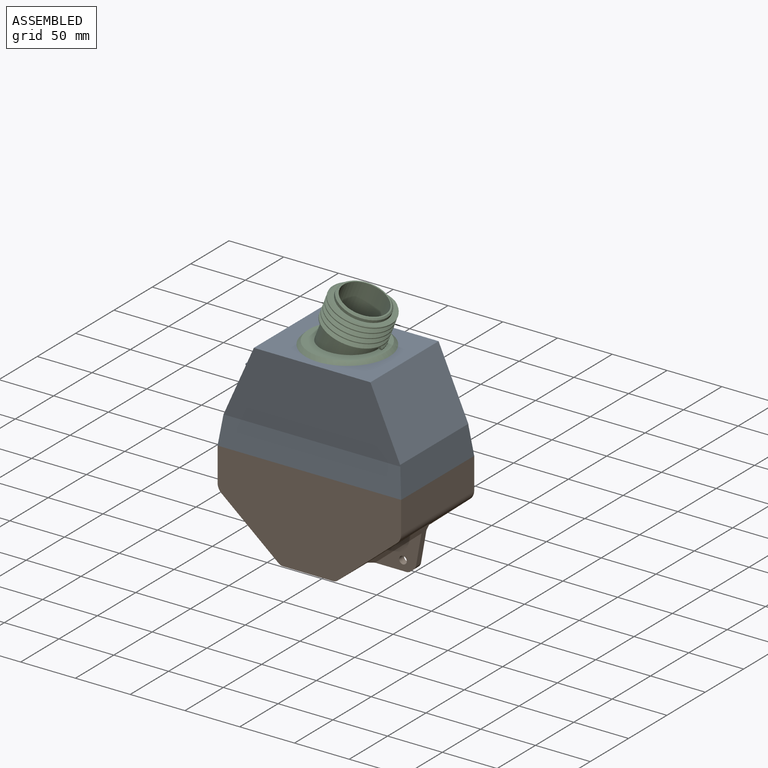
[diagram: assembled view]
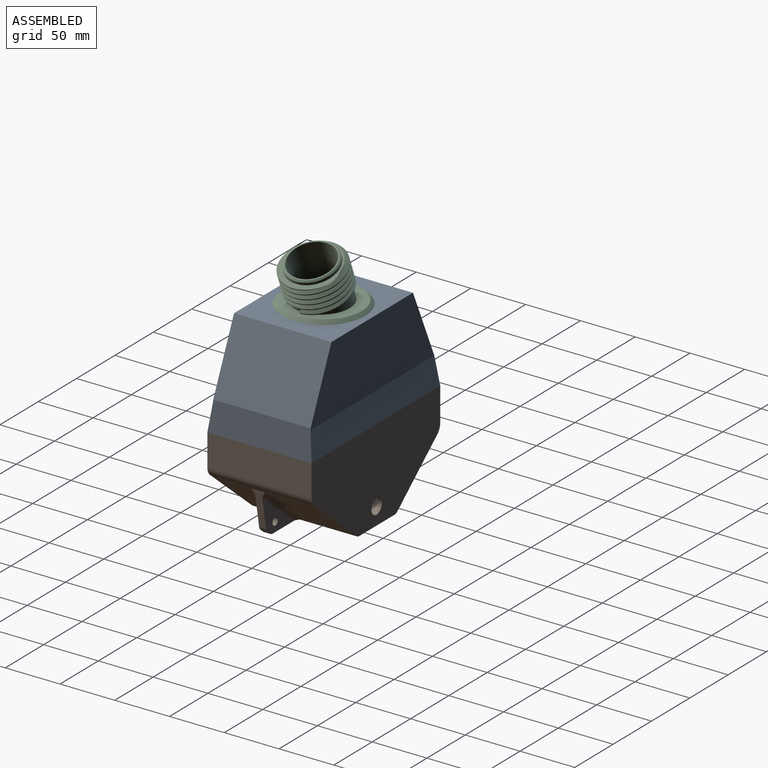
[diagram: assembled view, second angle]
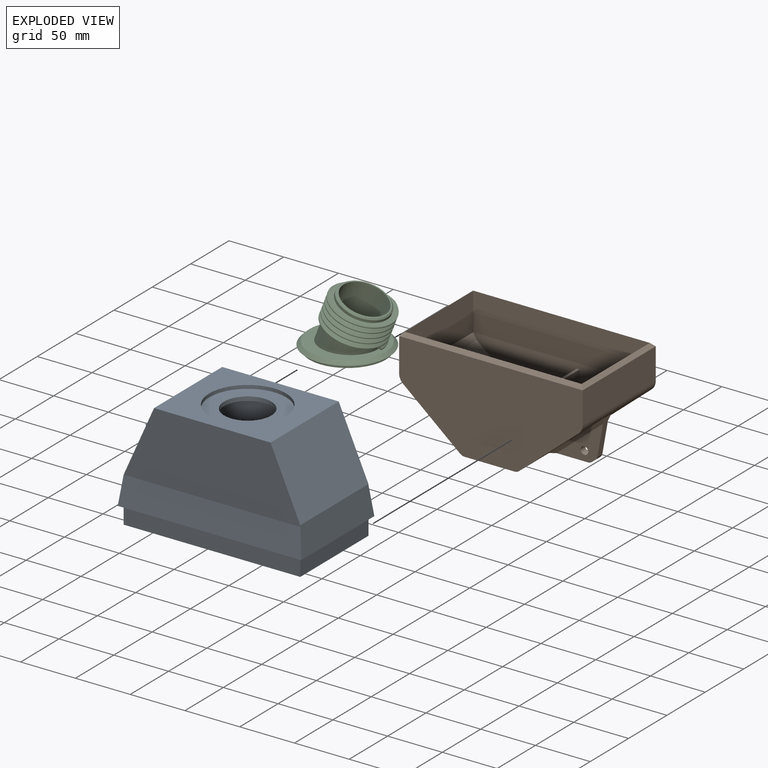
[diagram: exploded view]
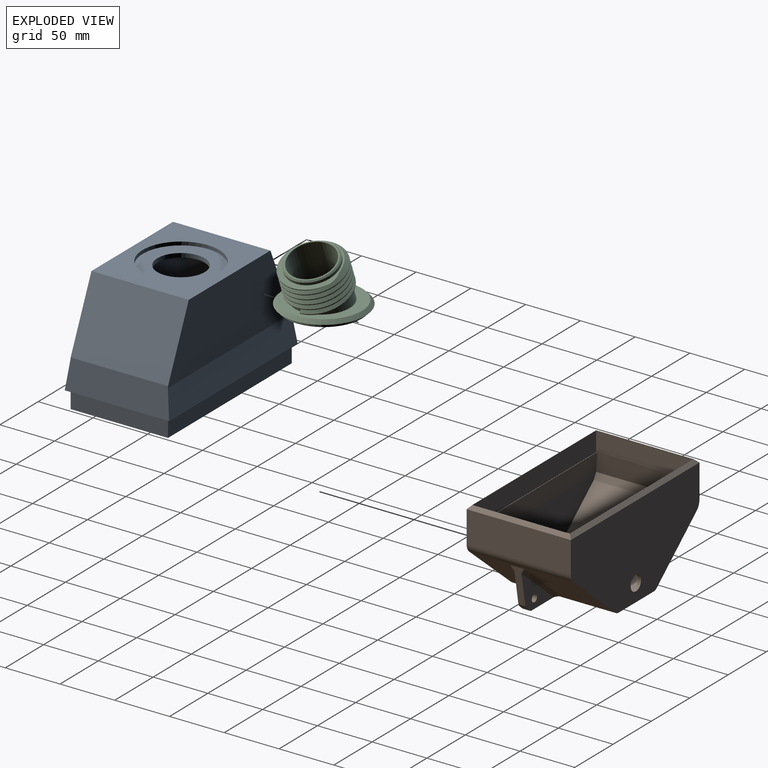
[diagram: exploded view, second angle]
ASSEMBLY  parts=3 mates=3
PART A: 59 faces, bbox 173x95.3x103.6 mm
  f0: plane 82.55x59.84mm, normal (0.91,0,-0.41), area 4848.2mm2, adj f8,f14,f18,f19,f53,f54
  f1: cylinder r=21.59mm len=43.18mm, axis (0,0,1), area 516.8mm2, adj f50,f52
  f2: plane 167.64x3.18mm, normal (0,-0.71,-0.71), area 738.5mm2, adj f6,f44,f46,f47
  f3: plane 167.64x3.18mm, normal (0,0.71,-0.71), area 738.5mm2, adj f5,f44,f46,f48
  f4: plane 161.46x62.34mm, normal (0,-1,0), area 8362.5mm2, adj f16,f24,f25,f45,f48
  f5: plane 161.29x19.05mm, normal (0,-1,0), area 3072.6mm2, adj f3,f7,f11,f12,f23,f31
  f6: plane 161.29x19.05mm, normal (0,1,0), area 3072.6mm2, adj f2,f7,f10,f23,f27,f34
  f7: plane 88.9x19.05mm, normal (-1,0,0), area 1693.5mm2, adj f5,f6,f10,f11,f17,f44
  f8: plane 154.94x97.26mm, normal (0,-1,0), area 13512.3mm2, adj f0,f18,f19,f20,f21,f34
  f9: plane 0x0mm, normal (0,-1,0), area 0mm2, adj f17,f32,f38
  f10: plane 0x0mm, normal (0,0,-1), area 0mm2, adj f6,f7,f37,f38
  f11: plane 0x0mm, normal (0,0,-1), area 0mm2, adj f5,f7,f35,f36
  f12: plane 0x0mm, normal (0,0,-1), area 0mm2, adj f5,f23,f39,f40
  f13: plane 0x0mm, normal (0,1,0), area 0mm2, adj f17,f29,f36
  f14: plane 154.94x97.26mm, normal (0,1,0), area 13512.3mm2, adj f0,f18,f19,f20,f21,f31
  f15: plane 0x0mm, normal (0,1,0), area 0mm2, adj f22,f30,f40
  f16: plane 88.9x62.34mm, normal (-0.91,0,0.41), area 5506.9mm2, adj f4,f25,f28,f43,f56
  f17: plane 88.9x3.18mm, normal (0.71,0,-0.71), area 384.9mm2, adj f7,f9,f13,f18,f36,f38
  f18: plane 82.55x37.43mm, normal (1,0,0), area 3089.4mm2, adj f0,f8,f14,f17
  f19: plane 102.28x82.55mm, normal (0,0,-1), area 3882.7mm2, adj f0,f8,f14,f20,f49
  f20: plane 82.55x58.44mm, normal (-0.91,0,-0.41), area 5281.1mm2, adj f8,f14,f19,f21
  f21: plane 82.55x38.82mm, normal (-1,0,0), area 3204.4mm2, adj f8,f14,f20,f22
  f22: plane 88.9x3.18mm, normal (-0.71,0,-0.71), area 384.9mm2, adj f15,f21,f23,f26,f40,f42
  f23: plane 88.9x19.05mm, normal (1,0,0), area 1693.5mm2, adj f5,f6,f12,f22,f27,f46
  f24: plane 88.9x60.94mm, normal (0.91,0,0.41), area 5930.7mm2, adj f4,f25,f28,f45
  f25: plane 106.4x88.9mm, normal (0,0,1), area 5599.2mm2, adj f4,f16,f24,f28,f51
  f26: plane 0x0mm, normal (0,-1,0), area 0mm2, adj f22,f33,f42
  f27: plane 0x0mm, normal (0,0,-1), area 0mm2, adj f6,f23,f41,f42
  f28: plane 161.46x62.34mm, normal (0,1,0), area 8362.5mm2, adj f16,f24,f25,f45,f47
  f29: plane 0x0mm, normal (1,0,0), area 0mm2, adj f13,f31,f35
  f30: plane 0x0mm, normal (-1,0,0), area 0mm2, adj f15,f31,f39
  f31: plane 161.29x3.18mm, normal (0,0.71,-0.71), area 710mm2, adj f5,f14,f29,f30,f35,f39
  f32: plane 0x0mm, normal (1,0,0), area 0mm2, adj f9,f34,f37
  f33: plane 0x0mm, normal (-1,0,0), area 0mm2, adj f26,f34,f41
  f34: plane 161.29x3.18mm, normal (0,-0.71,-0.71), area 710mm2, adj f6,f8,f32,f33,f37,f41
  f35: plane 3.18x3.17mm, normal (0.71,0,-0.71), area 0mm2, adj f11,f29,f31,f36
  f36: plane 3.18x3.17mm, normal (0,0.71,-0.71), area 0mm2, adj f11,f13,f17,f35
  f37: plane 3.18x3.17mm, normal (0.71,0,-0.71), area 0mm2, adj f10,f32,f34,f38
  f38: plane 3.18x3.17mm, normal (0,-0.71,-0.71), area 0mm2, adj f9,f10,f17,f37
  f39: plane 3.18x3.17mm, normal (-0.71,0,-0.71), area 0mm2, adj f12,f30,f31,f40
  f40: plane 3.18x3.17mm, normal (0,0.71,-0.71), area 0mm2, adj f12,f15,f22,f39
  f41: plane 3.18x3.17mm, normal (-0.71,0,-0.71), area 0mm2, adj f27,f33,f34,f42
  f42: plane 3.18x3.17mm, normal (0,-0.71,-0.71), area 0mm2, adj f22,f26,f27,f41
  f43: plane 95.25x25.4mm, normal (-0.99,0,0.12), area 2356.9mm2, adj f16,f44,f47,f48
  f44: plane 95.25x3.18mm, normal (0.71,0,-0.71), area 413.4mm2, adj f2,f3,f7,f43
  f45: plane 95.25x26.79mm, normal (0.99,0,0.12), area 2479.7mm2, adj f4,f24,f28,f46,f47,f48
  f46: plane 95.25x3.18mm, normal (-0.71,0,-0.71), area 413.4mm2, adj f2,f3,f23,f45
  f47: plane 167.64x25.4mm, normal (0,0.99,0.12), area 4212mm2, adj f2,f28,f43,f45
  f48: plane 167.64x25.4mm, normal (0,-0.99,0.12), area 4212mm2, adj f3,f4,f43,f45
  f49: cylinder r=38.1mm len=76.2mm, axis (0,0,1), area 912.1mm2, adj f19,f50
  f50: plane 76.2x76.2mm, normal (0,0,-1), area 3096mm2, adj f1,f49
  f51: cylinder r=35.05mm len=70.1mm, axis (0,0,1), area 699.3mm2, adj f25,f52
  f52: plane 70.1x70.1mm, normal (0,0,1), area 2395.5mm2, adj f1,f51
  f53: plane 24x20.64mm, normal (0.5,0,-0.87), area 170.8mm2, adj f0,f54,f55
  f54: cylinder r=12mm len=29.36mm, axis (0.5,0,-0.87), area 648.7mm2, adj f0,f53
  f55: cylinder r=9.46mm len=30.36mm, axis (0.5,0,-0.87), area 1434.5mm2, adj f53,f58
  f56: cylinder r=12mm len=31.59mm, axis (0.5,0,-0.87), area 971mm2, adj f16,f57
  f57: plane 24x20.79mm, normal (-0.5,0,0.87), area 90.7mm2, adj f56,f58
  f58: torus R=10.73mm, axis (-0.5,0,0.87), area 124.4mm2, adj f55,f57
PART B: 60 faces, bbox 167.6x95.3x86.8 mm
  f0: plane 95.25x54.66mm, normal (0.64,0,-0.77), area 5997.6mm2, adj f24,f25,f29,f35,f50,f53,f58,f59
  f1: plane 39.78x34.96mm, normal (-0.01,0,1), area 1390.8mm2, adj f2,f3,f13,f48
  f2: plane 44.86x5.11mm, normal (-0.71,0,0.71), area 304.9mm2, adj f1,f4,f13,f48
  f3: plane 88.9x51.4mm, normal (0.64,0,0.77), area 5805.4mm2, adj f1,f5,f10,f13,f18,f44,f45,f46
  f4: plane 88.9x38.52mm, normal (-1,0,0), area 3350.6mm2, adj f2,f10,f13,f41,f43,f44,f46,f47
  f5: plane 36.42x34.96mm, normal (-0.01,0,1), area 1273.1mm2, adj f3,f10,f43,f49
  f6: plane 88.9x3.18mm, normal (-0.71,0,0.71), area 387mm2, adj f8,f14,f32,f36,f38
  f7: plane 88.9x3.18mm, normal (0.71,0,0.71), area 387mm2, adj f9,f27,f30,f32,f34,f36,f38
  f8: plane 88.9x18.42mm, normal (0.99,0,-0.17), area 1602.4mm2, adj f6,f18,f33,f39
  f9: plane 88.19x16.35mm, normal (-0.98,0,-0.19), area 1422.1mm2, adj f7,f15,f33,f39
  f10: plane 160.1x48.63mm, normal (0,1,0), area 5077.1mm2, adj f3,f4,f5,f15,f16,f17,f18,f39
  f11: plane 95.25x3.18mm, normal (-0.71,0,0.71), area 413.4mm2, adj f14,f19,f31,f37
  f12: plane 95.25x3.18mm, normal (0.71,0,0.71), area 413.4mm2, adj f26,f27,f31,f37
  f13: plane 160.1x48.63mm, normal (0,-1,0), area 4929.3mm2, adj f1,f2,f3,f4,f15,f16,f17,f18
  f14: plane 88.9x19.05mm, normal (1,0,0), area 1693.5mm2, adj f6,f11,f30,f36
  f15: plane 88.9x5.5mm, normal (-0.87,0,0.5), area 563.7mm2, adj f9,f10,f13,f16,f33,f39
  f16: plane 88.9x53.52mm, normal (-0.64,0,0.77), area 6211.3mm2, adj f10,f13,f15,f17
  f17: plane 88.9x2.3mm, normal (-0.01,0,1), area 204.4mm2, adj f10,f13,f16,f42
  f18: plane 88.9x5.5mm, normal (0.87,0,0.5), area 564.5mm2, adj f3,f8,f10,f13
  f19: plane 95.25x30.72mm, normal (-1,0,0), area 2926.3mm2, adj f11,f20,f29,f35
  f20: cylinder r=10.16mm len=95.25mm, axis (0,1,0), area 786.5mm2, adj f19,f21,f29,f35
  f21: plane 95.25x52.54mm, normal (-0.64,0,-0.77), area 6532.2mm2, adj f20,f22,f29,f35
  f22: cylinder r=6.35mm len=95.25mm, axis (0,1,0), area 422.3mm2, adj f21,f23,f29,f35
  f23: plane 95.25x45.61mm, normal (0,0,-1), area 4344.8mm2, adj f22,f24,f29,f35
  f24: cylinder r=6.35mm len=95.25mm, axis (0,1,0), area 463.3mm2, adj f0,f23,f29,f35
  f25: cylinder r=10.16mm len=95.25mm, axis (0,1,0), area 748.9mm2, adj f0,f26,f29,f35
  f26: plane 95.25x29.05mm, normal (1,0,0), area 2767.3mm2, adj f12,f25,f29,f35
  f27: plane 88.9x19.05mm, normal (-1,0,0), area 1693.5mm2, adj f7,f12,f30,f36
  f28: cylinder r=6.86mm len=13.72mm, axis (0,-1,0), area 136.8mm2, adj f13,f29
  f29: plane 167.64x83.67mm, normal (0,1,0), area 10977.4mm2, adj f0,f19,f20,f21,f22,f23,f24,f25
  f30: plane 161.29x19.05mm, normal (0,-1,0), area 3072.6mm2, adj f7,f14,f27,f31,f32,f34
  f31: plane 167.64x3.18mm, normal (0,0.71,0.71), area 738.5mm2, adj f11,f12,f29,f30
  f32: plane 161.27x3.18mm, normal (0,0.71,0.71), area 710mm2, adj f6,f7,f30,f33,f34
  f33: plane 161.29x18.42mm, normal (0,-0.99,-0.17), area 2957.5mm2, adj f8,f9,f13,f15,f32
  f34: plane 0.02x0.02mm, normal (-1,0,0), area 0mm2, adj f7,f30,f32
  f35: plane 167.64x83.67mm, normal (0,-1,0), area 11125.1mm2, adj f0,f19,f20,f21,f22,f23,f24,f25
  f36: plane 161.29x19.05mm, normal (0,1,0), area 2922.9mm2, adj f6,f7,f14,f27,f37,f38
  f37: plane 167.64x3.18mm, normal (0,-0.71,0.71), area 738.5mm2, adj f11,f12,f35,f36
  f38: plane 159.42x3.18mm, normal (0,-0.58,0.82), area 610.9mm2, adj f6,f7,f36,f39
  f39: plane 161.29x18.42mm, normal (0,0.99,-0.17), area 2957.5mm2, adj f8,f9,f10,f15,f38
  f40: plane 88.9x38.45mm, normal (1,0,0), area 3418mm2, adj f10,f13,f41,f42
  f41: plane 88.9x2.54mm, normal (0,0,1), area 225.8mm2, adj f4,f10,f13,f40
  f42: plane 88.9x5.14mm, normal (0.71,0,0.71), area 644.2mm2, adj f10,f13,f17,f40
  f43: plane 41.5x5.11mm, normal (-0.71,0,0.71), area 280.7mm2, adj f4,f5,f10,f49
  f44: plane 76.2x29.39mm, normal (0,-1,0), area 1851.9mm2, adj f3,f4,f45,f47,f49
  f45: plane 4.09x2.54mm, normal (-1,0,0), area 10.4mm2, adj f3,f44,f46,f47
  f46: plane 76.2x29.39mm, normal (0,1,0), area 1851.9mm2, adj f3,f4,f45,f47,f48
  f47: plane 76.2x2.54mm, normal (0,0,1), area 193.5mm2, adj f4,f44,f45,f46
  f48: plane 46.05x5.31mm, normal (0,0.71,0.71), area 291mm2, adj f1,f2,f3,f4,f46
  f49: plane 46.05x5.31mm, normal (0,-0.71,0.71), area 291mm2, adj f3,f4,f5,f43,f44
  f50: plane 34.41x12.7mm, normal (0,0,-1), area 234.2mm2, adj f0,f54,f55,f56,f58,f59
  f51: plane 6.35x4.65mm, normal (0.64,0,-0.77), area 38.5mm2, adj f54,f55,f56,f57
  f52: cylinder r=3.48mm len=6.96mm, axis (0,-1,0), area 138.8mm2, adj f54,f55
  f53: plane 33.89x12.7mm, normal (0.98,0,-0.17), area 234.2mm2, adj f0,f54,f55,f57,f58,f59
  f54: plane 42.36x35.54mm, normal (0,1,0), area 587.8mm2, adj f50,f51,f52,f53,f56,f57,f58
  f55: plane 42.36x35.54mm, normal (0,-1,0), area 587.8mm2, adj f50,f51,f52,f53,f56,f57,f59
  f56: plane 6.35x2.04mm, normal (0.34,0,-0.94), area 13.8mm2, adj f50,f51,f54,f55
  f57: plane 6.35x1.88mm, normal (0.87,0,-0.5), area 13.8mm2, adj f51,f53,f54,f55
  f58: plane 48.16x40.41mm, normal (0.45,0.71,-0.54), area 265.3mm2, adj f0,f50,f53,f54
  f59: plane 48.16x40.41mm, normal (0.45,-0.71,-0.54), area 265.3mm2, adj f0,f50,f53,f55
PART C: 27 faces, bbox 74.6x79.7x63.6 mm
  f0: cylinder r=24.51mm len=49.02mm, axis (0,0,-1), area 2018.9mm2, adj f7,f8,f9,f24
  f1: cylinder r=20.32mm len=48.85mm, axis (0,0,-1), area 5287.6mm2, adj f6,f13,f14,f22,f23
  f2: bspline ~64.38x55.76mm, area 2730.8mm2, adj f3,f5,f7,f9,f11
  f3: cylinder r=27.88mm len=55.76mm, axis (0,0,-1), area 763.8mm2, adj f2,f4,f7,f11
  f4: bspline ~64.38x55.76mm, area 3630.3mm2, adj f3,f5,f7,f11
  f5: bspline ~57.12x49.47mm, area 429.4mm2, adj f2,f4,f7,f8,f11
  f6: plane 43.18x43.18mm, normal (0,0,1), area 167.2mm2, adj f1,f12
  f7: plane 4.72x3.37mm, normal (0,-1,0), area 9.1mm2, adj f0,f2,f3,f4,f5,f9
  f8: plane 0.38x0.24mm, normal (0,-1,0), area 0mm2, adj f0,f5,f9
  f9: bspline ~57.12x49.47mm, area 34.8mm2, adj f0,f2,f7,f8
  f10: cylinder r=22.86mm len=45.72mm, axis (0,0,-1), area 364.8mm2, adj f11,f12
  f11: plane 56.58x55.65mm, normal (0,0,1), area 538.5mm2, adj f2,f3,f4,f5,f10
  f12: cone r=22.86mm half-angle=45deg, axis (0,0,-1), area 250.8mm2, adj f6,f10
  f13: plane 40.64x20.86mm, normal (-0.36,0,0.93), area 91.5mm2, adj f1,f14
  f14: cylinder r=20.32mm len=40.64mm, axis (0.36,0,-0.93), area 200.7mm2, adj f1,f13,f17,f19,f20
  f15: cylinder r=34.92mm len=69.85mm, axis (-0.36,0,0.93), area 696.7mm2, adj f16,f25
  f16: plane 69.85x65.21mm, normal (0.36,0,-0.93), area 2534.8mm2, adj f15,f18
  f17: cylinder r=20.32mm len=1.43mm, axis (0,0,-1), area 0.2mm2, adj f14,f19,f21,f23
  f18: cylinder r=20.32mm len=40.64mm, axis (-0.36,0,0.93), area 405.4mm2, adj f16,f19,f21
  f19: plane 40.64x19.11mm, normal (0.36,0,-0.93), area 8.3mm2, adj f14,f17,f18,f20
  f20: cylinder r=20.32mm len=1.43mm, axis (0,0,-1), area 0.2mm2, adj f14,f19,f21,f23
  f21: plane 40.64x19.02mm, normal (-0.36,0,0.93), area 8.3mm2, adj f17,f18,f20,f23
  f22: plane 25.79x4.62mm, normal (-0.36,0,0.93), area 5.8mm2, adj f1,f23
  f23: cylinder r=20.32mm len=40.64mm, axis (0.36,0,-0.93), area 154.1mm2, adj f1,f17,f20,f21,f22
  f24: plane 69.85x65.21mm, normal (-0.36,0,0.93), area 1810.3mm2, adj f0,f26
  f25: plane 76.2x71.14mm, normal (0.36,0,-0.93), area 728.4mm2, adj f15,f26
  f26: cone r=38.1mm half-angle=45deg, axis (0.36,0,-0.93), area 1030.1mm2, adj f24,f25
PLACE A t=(-5.74,32.29,-82.65)mm
PLACE B t=(0,35.47,9.52)mm
PLACE C rot(axis=(0,1,0),21deg) t=(-2.86,-8.38,138.18)mm
MATE planar A.f6 <-> B.f30  axis (0,1,0) through (-6.81,35.47,35.79)mm
MATE parallel B.f12 <-> A.f46  axis (0.71,0,0.71) through (75.44,-8.98,43.71)mm
MATE parallel C.f15 <-> A.f1  axis (0,0,-1) through (-5.74,-8.38,126.7)mm
